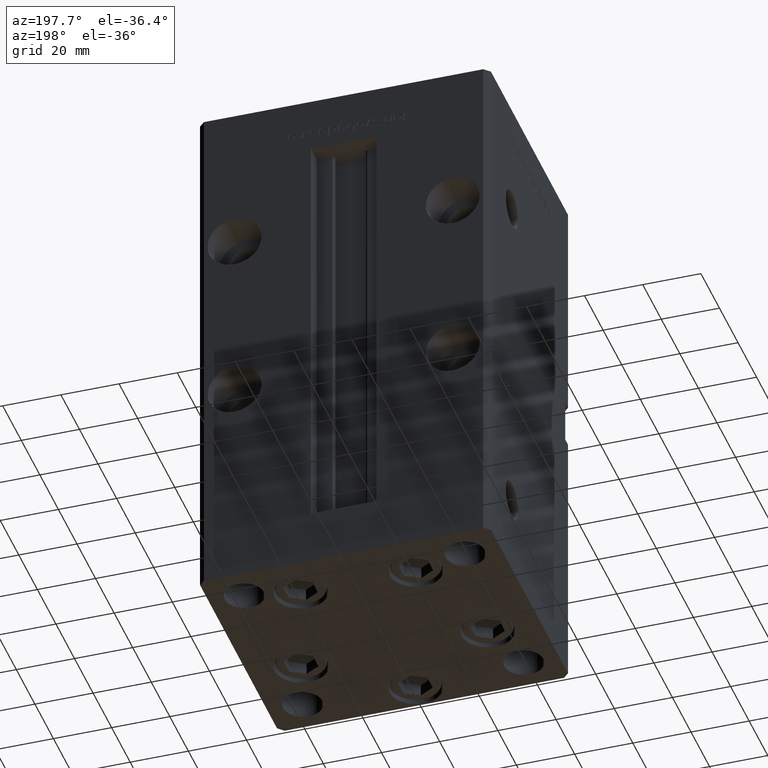
[diagram: clean part render]
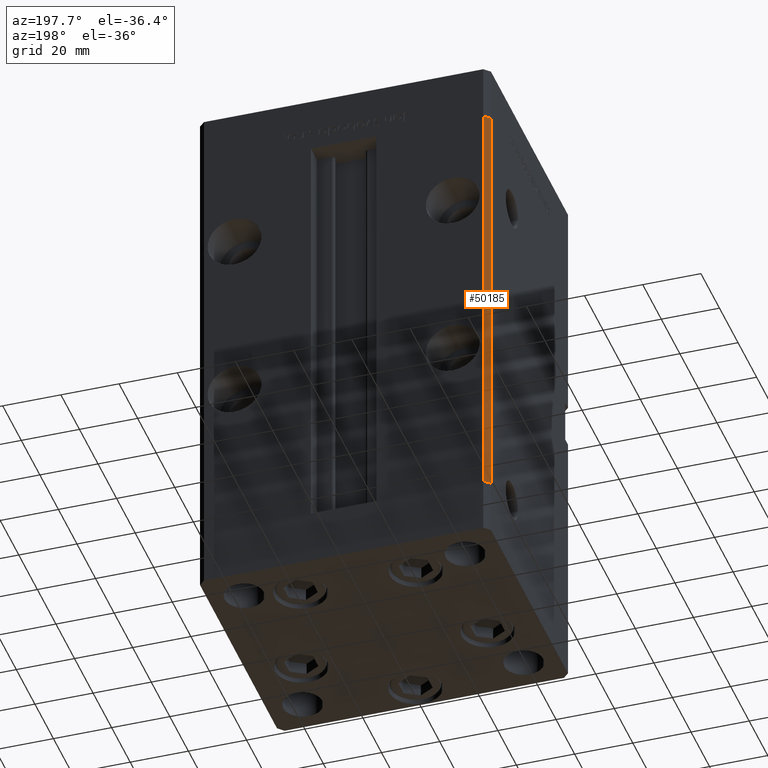
[diagram: same view with one face highlighted and labeled with its STEP entity id]
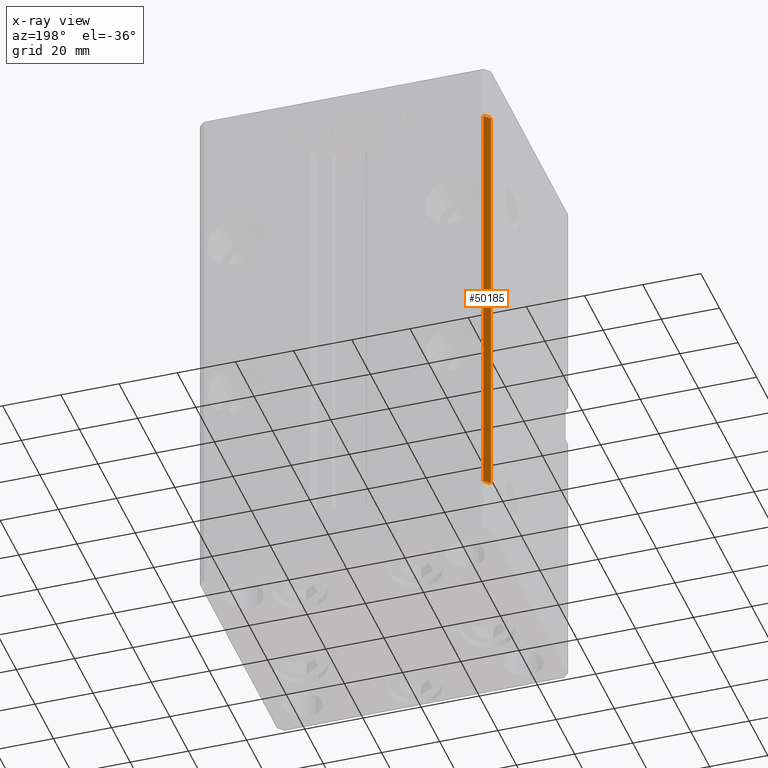
[diagram: x-ray of the same camera — body ghosted, the highlighted face saturated]
A machine part, auxiliary view. The second image highlights one B-rep face of the part: STEP entity #50185.
The next image is the same camera in x-ray: the body ghosted, the highlighted face saturated — about 0% of this face is hidden behind the body in this view.
In plain terms, the highlighted planar face has unit normal (0.7071, -0.7071, 0).
Its self-contained STEP definition (entity closure, byte-faithful):
#2078 = VECTOR ( 'NONE', #13418, 1000.000000000000000 ) ;
#2578 = DIRECTION ( 'NONE',  ( -0.000000000000000000, -0.000000000000000000, -1.000000000000000000 ) ) ;
#3744 = VERTEX_POINT ( 'NONE', #16792 ) ;
#4399 = ORIENTED_EDGE ( 'NONE', *, *, #39756, .T. ) ;
#4608 = VERTEX_POINT ( 'NONE', #21109 ) ;
#5299 = CARTESIAN_POINT ( 'NONE',  ( -48.00000000000000711, 43.50000000000000000, 148.5000000000000000 ) ) ;
#6082 = DIRECTION ( 'NONE',  ( 0.7071067811865463515, -0.7071067811865487940, 0.000000000000000000 ) ) ;
#6085 = VECTOR ( 'NONE', #39582, 1000.000000000000000 ) ;
#10912 = AXIS2_PLACEMENT_3D ( 'NONE', #5299, #6082, #17671 ) ;
#11578 = LINE ( 'NONE', #15069, #6085 ) ;
#12853 = DIRECTION ( 'NONE',  ( -0.7071067811865487940, -0.7071067811865463515, 0.000000000000000000 ) ) ;
#13418 = DIRECTION ( 'NONE',  ( -0.7071067811865487940, -0.7071067811865463515, 0.000000000000000000 ) ) ;
#14668 = CARTESIAN_POINT ( 'NONE',  ( -48.00000000000000711, 43.50000000000000000, 148.5000000000000000 ) ) ;
#15069 = CARTESIAN_POINT ( 'NONE',  ( -50.00000000000001421, 41.49999999999999289, 148.5000000000000000 ) ) ;
#16452 = ORIENTED_EDGE ( 'NONE', *, *, #45865, .T. ) ;
#16792 = CARTESIAN_POINT ( 'NONE',  ( -48.00000000000000711, 43.50000000000000000, 0.000000000000000000 ) ) ;
#16927 = CARTESIAN_POINT ( 'NONE',  ( -48.00000000000000711, 43.50000000000000000, 148.5000000000000000 ) ) ;
#17671 = DIRECTION ( 'NONE',  ( 0.7071067811865487940, 0.7071067811865463515, 0.000000000000000000 ) ) ;
#19658 = PLANE ( 'NONE',  #10912 ) ;
#21109 = CARTESIAN_POINT ( 'NONE',  ( -50.00000000000001421, 41.49999999999999289, 148.5000000000000000 ) ) ;
#22658 = VERTEX_POINT ( 'NONE', #45135 ) ;
#26569 = ORIENTED_EDGE ( 'NONE', *, *, #38679, .F. ) ;
#29254 = CARTESIAN_POINT ( 'NONE',  ( -48.00000000000000711, 43.50000000000000000, 0.000000000000000000 ) ) ;
#29558 = VERTEX_POINT ( 'NONE', #51049 ) ;
#30896 = EDGE_CURVE ( 'NONE', #4608, #22658, #11578, .T. ) ;
#33304 = LINE ( 'NONE', #29254, #51110 ) ;
#34508 = ORIENTED_EDGE ( 'NONE', *, *, #30896, .F. ) ;
#35964 = LINE ( 'NONE', #14668, #41751 ) ;
#36100 = FACE_OUTER_BOUND ( 'NONE', #48530, .T. ) ;
#37127 = LINE ( 'NONE', #16927, #2078 ) ;
#38679 = EDGE_CURVE ( 'NONE', #29558, #4608, #37127, .T. ) ;
#39582 = DIRECTION ( 'NONE',  ( -0.000000000000000000, -0.000000000000000000, -1.000000000000000000 ) ) ;
#39756 = EDGE_CURVE ( 'NONE', #3744, #22658, #33304, .T. ) ;
#41751 = VECTOR ( 'NONE', #2578, 1000.000000000000000 ) ;
#45135 = CARTESIAN_POINT ( 'NONE',  ( -50.00000000000001421, 41.49999999999999289, 0.000000000000000000 ) ) ;
#45865 = EDGE_CURVE ( 'NONE', #29558, #3744, #35964, .T. ) ;
#48530 = EDGE_LOOP ( 'NONE', ( #4399, #34508, #26569, #16452 ) ) ;
#50185 = ADVANCED_FACE ( 'NONE', ( #36100 ), #19658, .F. ) ;
#51049 = CARTESIAN_POINT ( 'NONE',  ( -48.00000000000000711, 43.50000000000000000, 148.5000000000000000 ) ) ;
#51110 = VECTOR ( 'NONE', #12853, 1000.000000000000000 ) ;